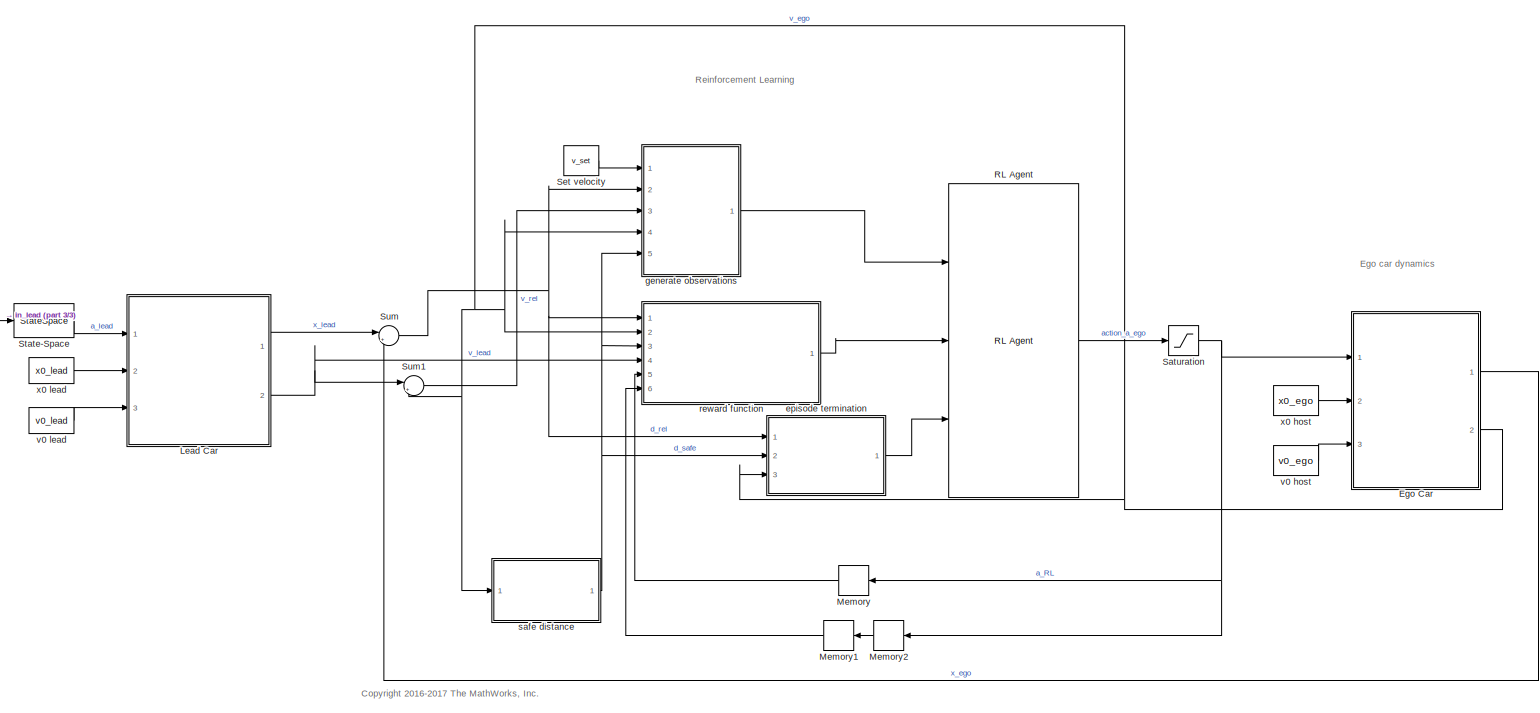
[diagram: root canvas - part 1/3, most of the canvas]
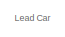
[diagram: root canvas - part 2/3, top left region]
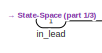
[diagram: root canvas - part 3/3, middle left region]
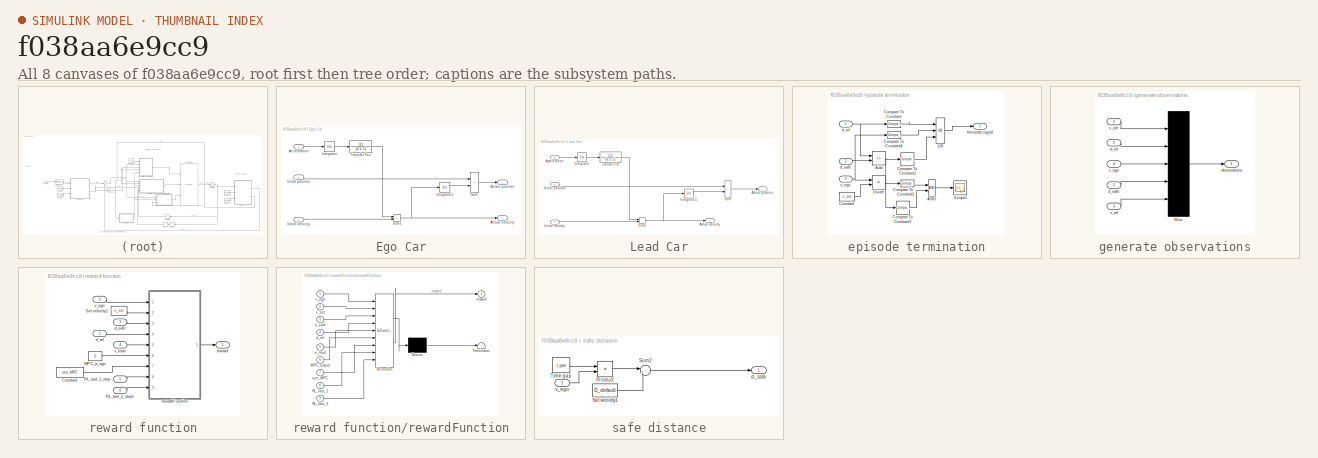
[diagram: thumbnail index - all 8 canvases of the model, root first then tree order]
MODEL slx_f038aa6e9cc9
KIND model
CONFIG AbsTol = auto
CONFIG EnableMultiTasking = off
CONFIG FixedStep = auto
CONFIG MaxStep = auto
CONFIG MinStep = auto
CONFIG RelTol = 1e-3
CONFIG SampleTimeConstraint = Unconstrained
CONFIG SolverName = FixedStepAuto
CONFIG StartTime = 0.0
CONFIG StopTime = T
BLOCK [SubSystem] Ego Car
  Ports = [3, 2]
  RequestExecContextInheritance = off
BLOCK [Inport] Ego Car/Acceleration
BLOCK [Outport] Ego Car/Actaul position
  VectorParamsAs1DForOutWhenUnconnected = off
BLOCK [Outport] Ego Car/Actual velocity
  Port = 2
  VectorParamsAs1DForOutWhenUnconnected = off
BLOCK [Inport] Ego Car/Initial position
  Port = 2
BLOCK [Inport] Ego Car/Initial velocity
  Port = 3
BLOCK [Integrator] Ego Car/Integrator
  Ports = [1, 1]
BLOCK [Integrator] Ego Car/Integrator1
  Ports = [1, 1]
BLOCK [Sum] Ego Car/Sum
  IconShape = rectangular
  Ports = [2, 1]
BLOCK [Sum] Ego Car/Sum1
  IconShape = rectangular
  Ports = [2, 1]
BLOCK [TransferFcn] Ego Car/Transfer Fcn
  Denominator = [0.5 1]
BLOCK [SubSystem] Lead Car
  Ports = [3, 2]
  RequestExecContextInheritance = off
BLOCK [Inport] Lead Car/Acceleration
BLOCK [Outport] Lead Car/Actual position
  VectorParamsAs1DForOutWhenUnconnected = off
BLOCK [Outport] Lead Car/Actual velocity
  Port = 2
  VectorParamsAs1DForOutWhenUnconnected = off
BLOCK [Inport] Lead Car/Initial position
  Port = 2
BLOCK [Inport] Lead Car/Initial velocity
  Port = 3
BLOCK [Integrator] Lead Car/Integrator
  Ports = [1, 1]
BLOCK [Integrator] Lead Car/Integrator1
  Ports = [1, 1]
BLOCK [Sum] Lead Car/Sum
  IconShape = rectangular
  Ports = [2, 1]
BLOCK [Sum] Lead Car/Sum1
  IconShape = rectangular
  Ports = [2, 1]
BLOCK [TransferFcn] Lead Car/Transfer Fcn
  Denominator = [0.5 1]
BLOCK [Memory] Memory
BLOCK [Memory] Memory1
BLOCK [Memory] Memory2
BLOCK [Reference] RL Agent  REF=rllib/RL Agent
  Ports = [3, 1]
  SourceBlock = rllib/RL Agent
  SourceProductBaseCode = RL
  SourceType = RL Agent
BLOCK [Saturate] Saturation
  LowerLimit = amin_ego
  UpperLimit = amax_ego
BLOCK [Constant] Set velocity
  SampleTime = Ts
  Value = v_set
BLOCK [StateSpace] State-Space
  A = -10
  B = 10
  D = 0
  InitialCondition = 0
  NameLocation = top
  Ports = [1, 1]
BLOCK [Sum] Sum
  Inputs = |+-
  Ports = [2, 1]
BLOCK [Sum] Sum1
  Inputs = |+-
  Ports = [2, 1]
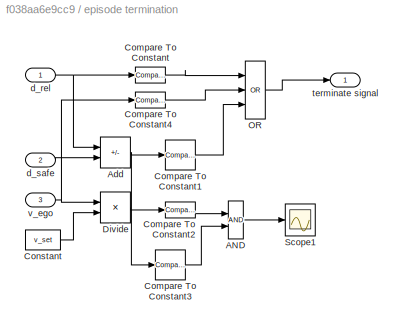
BLOCK [SubSystem] episode termination
  Ports = [3, 1]
  RequestExecContextInheritance = off
BLOCK [Logic] episode termination/AND
  AllPortsSameDT = off
  IconShape = distinctive
  OutDataTypeStr = boolean
  Ports = [2, 1]
BLOCK [Sum] episode termination/Add
  IconShape = rectangular
  Inputs = +-
  Ports = [2, 1]
BLOCK [Reference] episode termination/Compare To Constant  REF=simulink/Logic and Bit
Operations/Compare
To Constant
  Ports = [1, 1]
  SourceBlock = simulink/Logic and Bit\nOperations/Compare\nTo Constant
  SourceProductBaseCode = SL
  SourceType = Compare To Constant
BLOCK [Reference] episode termination/Compare To Constant1  REF=simulink/Logic and Bit
Operations/Compare
To Constant
  Ports = [1, 1]
  SourceBlock = simulink/Logic and Bit\nOperations/Compare\nTo Constant
  SourceProductBaseCode = SL
  SourceType = Compare To Constant
BLOCK [Reference] episode termination/Compare To Constant2  REF=simulink/Logic and Bit
Operations/Compare
To Constant
  Ports = [1, 1]
  SourceBlock = simulink/Logic and Bit\nOperations/Compare\nTo Constant
  SourceProductBaseCode = SL
  SourceType = Compare To Constant
BLOCK [Reference] episode termination/Compare To Constant3  REF=simulink/Logic and Bit
Operations/Compare
To Constant
  Ports = [1, 1]
  SourceBlock = simulink/Logic and Bit\nOperations/Compare\nTo Constant
  SourceProductBaseCode = SL
  SourceType = Compare To Constant
BLOCK [Reference] episode termination/Compare To Constant4  REF=simulink/Logic and Bit
Operations/Compare
To Constant
  Ports = [1, 1]
  SourceBlock = simulink/Logic and Bit\nOperations/Compare\nTo Constant
  SourceProductBaseCode = SL
  SourceType = Compare To Constant
BLOCK [Constant] episode termination/Constant
  Value = v_set
BLOCK [Product] episode termination/Divide
  Inputs = */
  Ports = [2, 1]
BLOCK [Logic] episode termination/OR
  AllPortsSameDT = off
  IconShape = distinctive
  Inputs = 3
  Operator = OR
  OutDataTypeStr = boolean
  Ports = [3, 1]
BLOCK [Scope] episode termination/Scope1
  Floating = off
  NumInputPorts = 1
  Ports = [1]
  ScopeSpecificationString = Simulink.scopes.TimeScopeBlockCfg('CurrentConfiguration', extmgr.ConfigurationSet(extmgr.Configuration('Core','General UI',true),extmgr.Configuration('Core','Source UI',true),extmgr.Configuration('Sources','WiredSimulink',true,'DataLoggingVariableName','ScopeData1'),extmgr.Configuration('Visuals','Time Domain',true),extmgr.Configuration('Tools','Plot Navigation',true),extmgr.Configuration('Tools',...<+40ch>
BLOCK [Inport] episode termination/d_rel
BLOCK [Inport] episode termination/d_safe
  Port = 2
BLOCK [Outport] episode termination/terminate signal
BLOCK [Inport] episode termination/v_ego
  Port = 3
BLOCK [SubSystem] generate observations
  Ports = [5, 1]
  RequestExecContextInheritance = off
BLOCK [Mux] generate observations/Mux
  DisplayOption = bar
  Inputs = 5
  Ports = [5, 1]
BLOCK [Inport] generate observations/d_rel
  Port = 2
BLOCK [Inport] generate observations/d_safe
  Port = 5
BLOCK [Outport] generate observations/observations
BLOCK [Inport] generate observations/v_ego
  Port = 4
BLOCK [Inport] generate observations/v_rel
  Port = 3
BLOCK [Inport] generate observations/v_set
BLOCK [Inport] in_lead
BLOCK [SubSystem] reward function
  Ports = [6, 1]
  RequestExecContextInheritance = off
BLOCK [Constant] reward function/Constant
  Value = use_MPC
BLOCK [Constant] reward function/MPC_a_ego
  Value = 0
BLOCK [Inport] reward function/RL_last_1_step
  Port = 5
BLOCK [Inport] reward function/RL_last_2_step1
  Port = 6
BLOCK [Constant] reward function/Set velocity1
  SampleTime = Ts
  Value = v_set
BLOCK [Inport] reward function/d_rel
BLOCK [Inport] reward function/d_safe
  Port = 3
BLOCK [Outport] reward function/reward
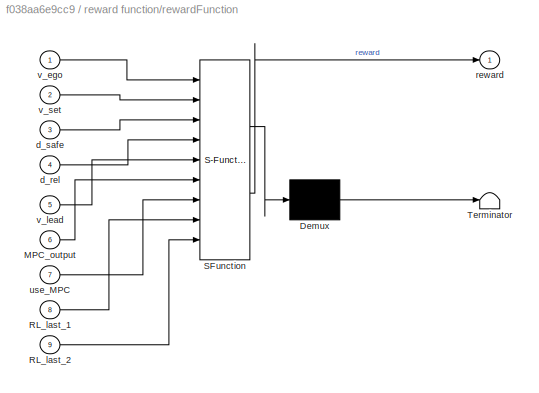
BLOCK [SubSystem] reward function/rewardFunction
  ErrorFcn = Stateflow.Translate.translate
  PermitHierarchicalResolution = ExplicitOnly
  Ports = [9, 1]
  RequestExecContextInheritance = off
  SFBlockType = MATLAB Function
  TreatAsAtomicUnit = on
BLOCK [Demux] reward function/rewardFunction/ Demux 
  Outputs = 1
  Ports = [1, 1]
BLOCK [S-Function] reward function/rewardFunction/ SFunction 
  EnableBusSupport = on
  FunctionName = sf_sfun
  PortCounts = [9 2]
  Ports = [9, 2]
  SFcnIsStateOwnerBlock = off
  SFunctionDeploymentMode = off
  Tag = Stateflow S-Function 2
BLOCK [Terminator] reward function/rewardFunction/ Terminator 
BLOCK [Inport] reward function/rewardFunction/MPC_output
  Port = 6
BLOCK [Inport] reward function/rewardFunction/RL_last_1
  Port = 8
BLOCK [Inport] reward function/rewardFunction/RL_last_2
  Port = 9
BLOCK [Inport] reward function/rewardFunction/d_rel
  Port = 4
BLOCK [Inport] reward function/rewardFunction/d_safe
  Port = 3
BLOCK [Outport] reward function/rewardFunction/reward
BLOCK [Inport] reward function/rewardFunction/use_MPC
  Port = 7
BLOCK [Inport] reward function/rewardFunction/v_ego
BLOCK [Inport] reward function/rewardFunction/v_lead
  Port = 5
BLOCK [Inport] reward function/rewardFunction/v_set
  Port = 2
BLOCK [Inport] reward function/v_ego
  Port = 2
BLOCK [Inport] reward function/v_lead
  Port = 4
BLOCK [SubSystem] safe distance
  Ports = [1, 1]
  RequestExecContextInheritance = off
BLOCK [Product] safe distance/Product
  Ports = [2, 1]
BLOCK [Constant] safe distance/Set velocity1
  SampleTime = Ts
  Value = D_default
BLOCK [Sum] safe distance/Sum2
  Inputs = |++
  Ports = [2, 1]
BLOCK [Constant] safe distance/Time gap
  SampleTime = Ts
  Value = t_gap
BLOCK [Outport] safe distance/d_safe
BLOCK [Inport] safe distance/v_ego
BLOCK [Constant] v0 host
  SampleTime = Ts
  Value = v0_ego
BLOCK [Constant] v0 lead
  SampleTime = Ts
  Value = v0_lead
BLOCK [Constant] x0 host
  SampleTime = Ts
  Value = x0_ego
BLOCK [Constant] x0 lead
  SampleTime = Ts
  Value = x0_lead
ANNOTATION (root): Reinforcement Learning
ANNOTATION (root): <copyright redacted>
ANNOTATION (root): Ego car dynamics
ANNOTATION (root): Lead Car
LINE Ego Car/Acceleration:1 -> Ego Car/Integrator:1
LINE Ego Car/Initial position:1 -> Ego Car/Sum:1
LINE Ego Car/Initial velocity:1 -> Ego Car/Sum1:2
LINE Ego Car/Integrator1:1 -> Ego Car/Sum:2
LINE Ego Car/Integrator:1 -> Ego Car/Transfer Fcn:1
NET Ego Car/Sum1:1 -> Ego Car/Actual velocity:1, Ego Car/Integrator1:1
LINE Ego Car/Sum:1 -> Ego Car/Actaul position:1
LINE Ego Car/Transfer Fcn:1 -> Ego Car/Sum1:1
LINE Ego Car:1 -> Sum:2
NET Ego Car:2 -> Sum1:2, episode termination:3, generate observations:4, reward function:2, safe distance:1
LINE Lead Car/Acceleration:1 -> Lead Car/Integrator:1
LINE Lead Car/Initial position:1 -> Lead Car/Sum:1
LINE Lead Car/Initial velocity:1 -> Lead Car/Sum1:2
LINE Lead Car/Integrator1:1 -> Lead Car/Sum:2
LINE Lead Car/Integrator:1 -> Lead Car/Transfer Fcn:1
NET Lead Car/Sum1:1 -> Lead Car/Actual velocity:1, Lead Car/Integrator1:1
LINE Lead Car/Sum:1 -> Lead Car/Actual position:1
LINE Lead Car/Transfer Fcn:1 -> Lead Car/Sum1:1
LINE Lead Car:1 -> Sum:1
NET Lead Car:2 -> Sum1:1, reward function:4
LINE Memory1:1 -> reward function:6
LINE Memory2:1 -> Memory1:1
LINE Memory:1 -> reward function:5
LINE RL Agent:1 -> Saturation:1
NET Saturation:1 -> Ego Car:1, Memory2:1, Memory:1
LINE Set velocity:1 -> generate observations:1
LINE State-Space:1 -> Lead Car:1
LINE Sum1:1 -> generate observations:3
NET Sum:1 -> episode termination:1, generate observations:2, reward function:1
LINE episode termination/AND:1 -> episode termination/Scope1:1
NET episode termination/Add:1 -> episode termination/Compare To Constant1:1, episode termination/Compare To Constant3:1
LINE episode termination/Compare To Constant1:1 -> episode termination/OR:3
LINE episode termination/Compare To Constant2:1 -> episode termination/AND:1
LINE episode termination/Compare To Constant3:1 -> episode termination/AND:2
LINE episode termination/Compare To Constant4:1 -> episode termination/OR:2
LINE episode termination/Compare To Constant:1 -> episode termination/OR:1
LINE episode termination/Constant:1 -> episode termination/Divide:2
LINE episode termination/Divide:1 -> episode termination/Compare To Constant2:1
LINE episode termination/OR:1 -> episode termination/terminate signal:1
NET episode termination/d_rel:1 -> episode termination/Add:1, episode termination/Compare To Constant:1
LINE episode termination/d_safe:1 -> episode termination/Add:2
NET episode termination/v_ego:1 -> episode termination/Compare To Constant4:1, episode termination/Divide:1
LINE episode termination:1 -> RL Agent:3
LINE generate observations/Mux:1 -> generate observations/observations:1
LINE generate observations/d_rel:1 -> generate observations/Mux:2
LINE generate observations/d_safe:1 -> generate observations/Mux:4
LINE generate observations/v_ego:1 -> generate observations/Mux:3
LINE generate observations/v_rel:1 -> generate observations/Mux:5
LINE generate observations/v_set:1 -> generate observations/Mux:1
LINE generate observations:1 -> RL Agent:1
LINE in_lead:1 -> State-Space:1
LINE reward function/Constant:1 -> reward function/rewardFunction:7
LINE reward function/MPC_a_ego:1 -> reward function/rewardFunction:6
LINE reward function/RL_last_1_step:1 -> reward function/rewardFunction:8
LINE reward function/RL_last_2_step1:1 -> reward function/rewardFunction:9
LINE reward function/Set velocity1:1 -> reward function/rewardFunction:2
LINE reward function/d_rel:1 -> reward function/rewardFunction:4
LINE reward function/d_safe:1 -> reward function/rewardFunction:3
LINE reward function/rewardFunction:1 -> reward function/reward:1
LINE reward function/v_ego:1 -> reward function/rewardFunction:1
LINE reward function/v_lead:1 -> reward function/rewardFunction:5
LINE reward function:1 -> RL Agent:2
LINE safe distance/Product:1 -> safe distance/Sum2:1
LINE safe distance/Set velocity1:1 -> safe distance/Sum2:2
LINE safe distance/Sum2:1 -> safe distance/d_safe:1
LINE safe distance/Time gap:1 -> safe distance/Product:1
LINE safe distance/v_ego:1 -> safe distance/Product:2
NET safe distance:1 -> episode termination:2, generate observations:5, reward function:3
LINE v0 host:1 -> Ego Car:3
LINE v0 lead:1 -> Lead Car:3
LINE x0 host:1 -> Ego Car:2
LINE x0 lead:1 -> Lead Car:2
note: NET lines group one-source signal fan-out (src -> all destinations, sorted); 1:1 wires keep LINE
CHART reward function/rewardFunction states=1 transitions=1
  STATE_LABEL 'eML_blk_kernel()'
  STATE_LABEL 'SCRIPT:\nfunction reward = fcn(v_ego, v_set, d_safe, d_rel, v_lead, MPC_output, use_MPC, RL_last_1, RL_last_2)\n% \n% % case 1: negative reward if d_rel < d_safe\n% if d_rel < d_safe \n%     reward = -tanh((d_safe - d_rel)/5);\n% \n% % case 2: negative reward for v_ego beyond v_set\n% elseif v_ego > v_set\n%     v_error = v_ego-v_set;\n%     reward = -tanh(v_error/2);\n%     \n% % case 4: positive reward for ...<+1130ch>'
CHART  states=0 transitions=0
